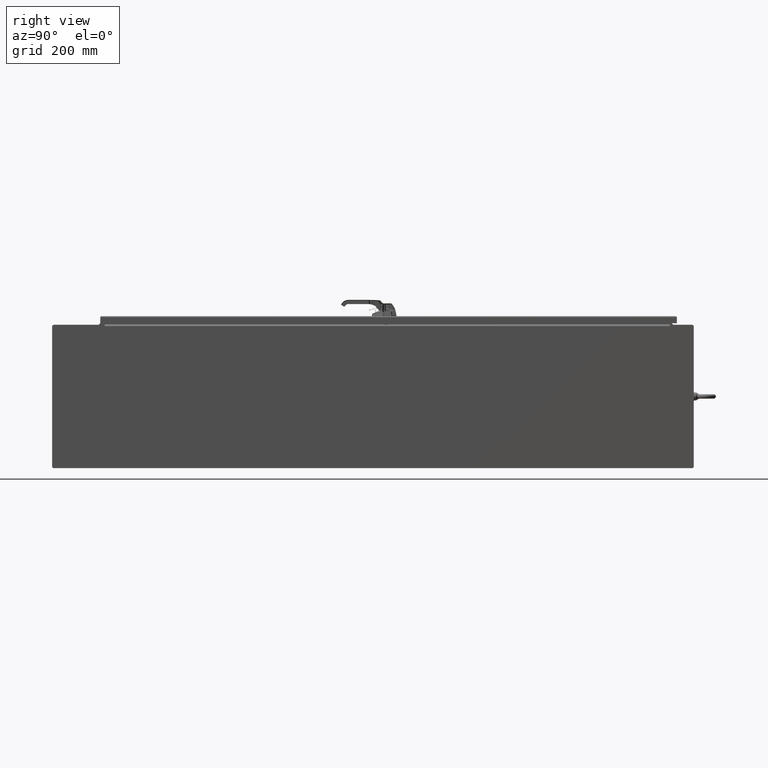
[diagram: clean part render]
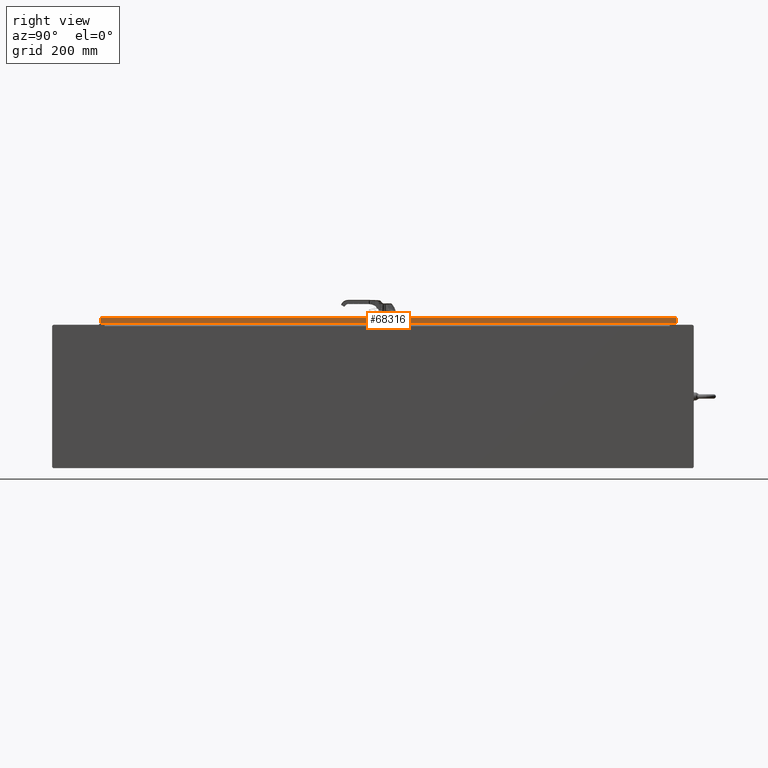
[diagram: same view with one face highlighted and labeled with its STEP entity id]
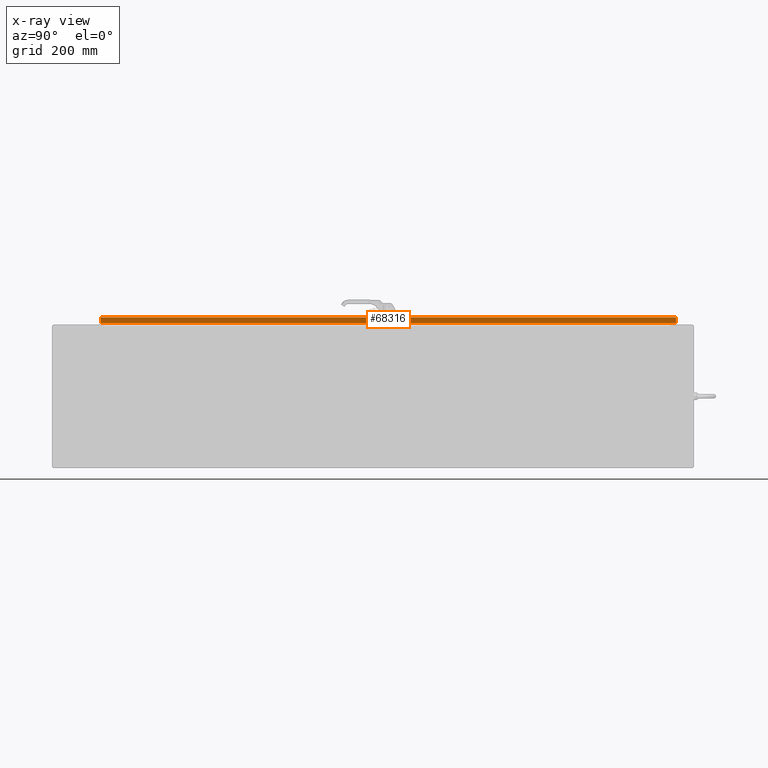
[diagram: x-ray of the same camera — body ghosted, the highlighted face saturated]
A machine part, right view. The second image highlights one B-rep face of the part: STEP entity #68316.
The next image is the same camera in x-ray: the body ghosted, the highlighted face saturated — about 0% of this face is hidden behind the body in this view.
In plain terms, the highlighted planar face has unit normal (1, -0, 0).
Its self-contained STEP definition (entity closure, byte-faithful):
#9337=PLANE('',#72209);
#10558=FACE_OUTER_BOUND('',#13536,.T.);
#13536=EDGE_LOOP('',(#51325,#51326,#51327,#51328));
#20366=LINE('',#97308,#25613);
#20372=LINE('',#97342,#25619);
#20377=LINE('',#97418,#25624);
#20379=LINE('',#97421,#25626);
#25613=VECTOR('',#79151,0.393700787401575);
#25619=VECTOR('',#79161,0.393700787401575);
#25624=VECTOR('',#79168,0.393700787401575);
#25626=VECTOR('',#79172,0.393700787401575);
#30768=VERTEX_POINT('',#97306);
#30769=VERTEX_POINT('',#97307);
#30775=VERTEX_POINT('',#97341);
#30777=VERTEX_POINT('',#97417);
#40187=EDGE_CURVE('',#30768,#30769,#20366,.T.);
#40195=EDGE_CURVE('',#30775,#30769,#20372,.T.);
#40202=EDGE_CURVE('',#30768,#30777,#20377,.T.);
#40204=EDGE_CURVE('',#30777,#30775,#20379,.T.);
#51325=ORIENTED_EDGE('',*,*,#40187,.T.);
#51326=ORIENTED_EDGE('',*,*,#40195,.F.);
#51327=ORIENTED_EDGE('',*,*,#40204,.F.);
#51328=ORIENTED_EDGE('',*,*,#40202,.F.);
#68316=ADVANCED_FACE('',(#10558),#9337,.T.);
#72209=AXIS2_PLACEMENT_3D('',#97422,#79173,#79174);
#79151=DIRECTION('',(-1.38025120716836E-16,-1.,6.39822559766825E-34));
#79161=DIRECTION('',(-5.39030285815812E-15,7.39557098644699E-31,1.));
#79168=DIRECTION('',(5.39030285815812E-15,-7.39557098644699E-31,-1.));
#79172=DIRECTION('',(-1.38143819531469E-16,-1.,4.15863768017291E-16));
#79173=DIRECTION('center_axis',(1.,-1.38025120716836E-16,5.38922434220667E-15));
#79174=DIRECTION('ref_axis',(5.38922434220667E-15,1.38143819531466E-16,
-1.));
#97306=CARTESIAN_POINT('',(17.21875,40.3952928932188,-0.0937500000000294));
#97307=CARTESIAN_POINT('',(17.21875,-40.3952928932188,-0.0937499999999959));
#97308=CARTESIAN_POINT('',(17.21875,3.11100627921915E-15,-0.0937499999999987));
#97341=CARTESIAN_POINT('',(17.21875,-40.3952928932188,-0.895999999999998));
#97342=CARTESIAN_POINT('',(17.21875,-40.3952928932188,-0.0937499999999959));
#97417=CARTESIAN_POINT('',(17.21875,40.3952928932188,-0.896000000000032));
#97418=CARTESIAN_POINT('',(17.21875,40.3952928932188,-0.0937500000000294));
#97421=CARTESIAN_POINT('',(17.21875,40.3952928932188,-0.896000000000032));
#97422=CARTESIAN_POINT('Origin',(17.21875,6.54498092303289E-16,-0.391091489143217));